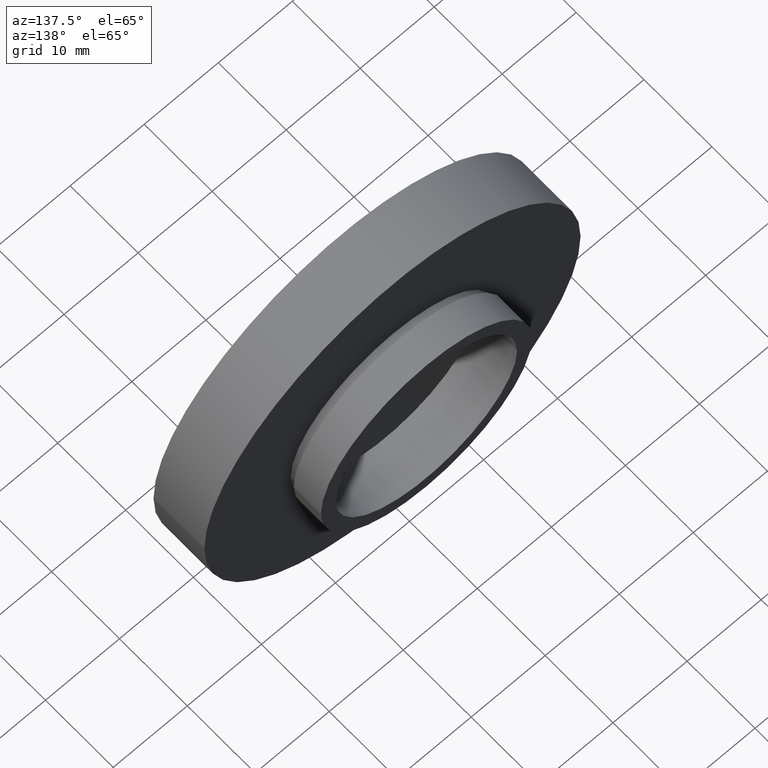
[diagram: clean part render]
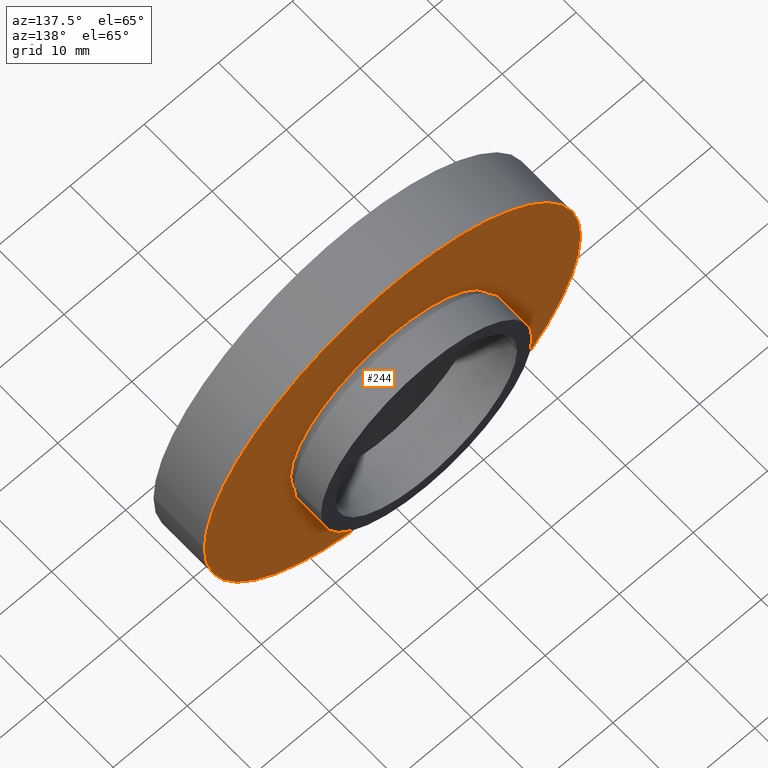
[diagram: same view with one face highlighted and labeled with its STEP entity id]
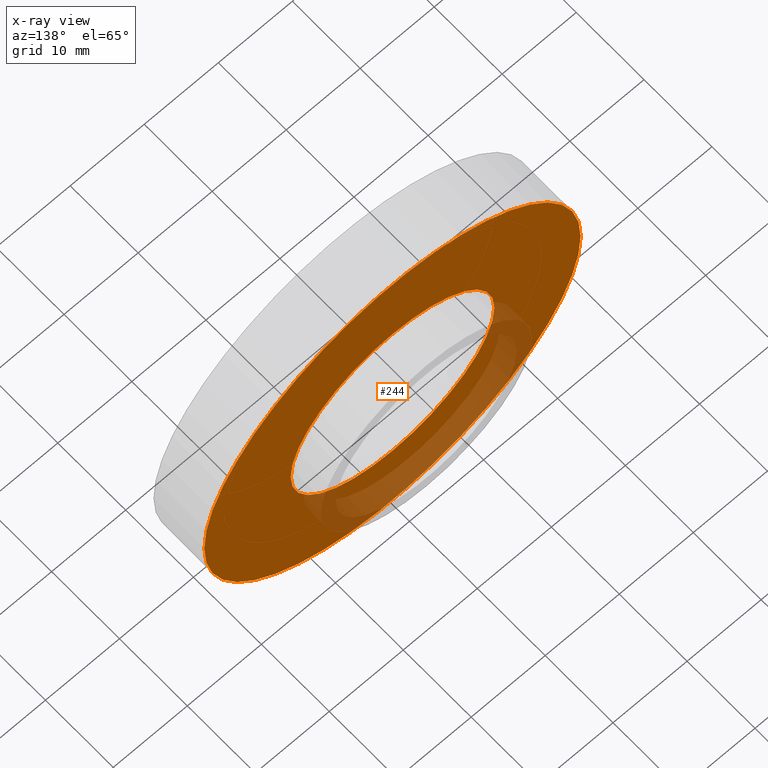
[diagram: x-ray of the same camera — body ghosted, the highlighted face saturated]
A machine part, auxiliary view. The second image highlights one B-rep face of the part: STEP entity #244.
The next image is the same camera in x-ray: the body ghosted, the highlighted face saturated — about 18% of this face is hidden behind the body in this view.
In plain terms, the highlighted planar face has unit normal (0, -1, 0).
Its self-contained STEP definition (entity closure, byte-faithful):
#4 = CARTESIAN_POINT ( 'NONE',  ( 1.149455719078122700E-015, 7.499999999999998200, 0.0000000000000000000 ) ) ;
#47 = EDGE_LOOP ( 'NONE', ( #228, #77 ) ) ;
#55 = CIRCLE ( 'NONE', #88, 13.75000000000000000 ) ;
#77 = ORIENTED_EDGE ( 'NONE', *, *, #441, .T. ) ;
#86 = CARTESIAN_POINT ( 'NONE',  ( 25.39999999999999900, 7.500000000000000000, 3.110602869834276900E-015 ) ) ;
#88 = AXIS2_PLACEMENT_3D ( 'NONE', #283, #141, #187 ) ;
#108 = CARTESIAN_POINT ( 'NONE',  ( 1.149455719078123100E-015, 7.499999999999996400, 0.0000000000000000000 ) ) ;
#114 = VERTEX_POINT ( 'NONE', #576 ) ;
#141 = DIRECTION ( 'NONE',  ( -1.224646799147351000E-016, 1.000000000000000000, -0.0000000000000000000 ) ) ;
#158 = FACE_OUTER_BOUND ( 'NONE', #47, .T. ) ;
#187 = DIRECTION ( 'NONE',  ( -1.000000000000000000, -1.261617073437678000E-016, 0.0000000000000000000 ) ) ;
#192 = DIRECTION ( 'NONE',  ( -1.224646799147351000E-016, 1.000000000000000000, -0.0000000000000000000 ) ) ;
#210 = AXIS2_PLACEMENT_3D ( 'NONE', #489, #192, #473 ) ;
#228 = ORIENTED_EDGE ( 'NONE', *, *, #313, .T. ) ;
#234 = DIRECTION ( 'NONE',  ( -1.224646799147351000E-016, 1.000000000000000000, -0.0000000000000000000 ) ) ;
#244 = ADVANCED_FACE ( 'NONE', ( #335, #158 ), #348, .F. ) ;
#259 = AXIS2_PLACEMENT_3D ( 'NONE', #108, #234, #511 ) ;
#267 = CIRCLE ( 'NONE', #259, 25.39999999999999900 ) ;
#279 = EDGE_LOOP ( 'NONE', ( #439, #468 ) ) ;
#282 = AXIS2_PLACEMENT_3D ( 'NONE', #557, #554, #558 ) ;
#283 = CARTESIAN_POINT ( 'NONE',  ( 1.149455719078122700E-015, 7.499999999999998200, 0.0000000000000000000 ) ) ;
#286 = CARTESIAN_POINT ( 'NONE',  ( -25.39999999999999900, 7.499999999999992900, 0.0000000000000000000 ) ) ;
#299 = DIRECTION ( 'NONE',  ( -1.000000000000000000, -1.261617073437678000E-016, 0.0000000000000000000 ) ) ;
#313 = EDGE_CURVE ( 'NONE', #470, #488, #267, .T. ) ;
#335 = FACE_BOUND ( 'NONE', #279, .T. ) ;
#348 = PLANE ( 'NONE',  #282 ) ;
#354 = DIRECTION ( 'NONE',  ( -1.224646799147351000E-016, 1.000000000000000000, -0.0000000000000000000 ) ) ;
#402 = CIRCLE ( 'NONE', #479, 13.75000000000000000 ) ;
#439 = ORIENTED_EDGE ( 'NONE', *, *, #606, .F. ) ;
#441 = EDGE_CURVE ( 'NONE', #488, #470, #471, .T. ) ;
#468 = ORIENTED_EDGE ( 'NONE', *, *, #543, .F. ) ;
#470 = VERTEX_POINT ( 'NONE', #286 ) ;
#471 = CIRCLE ( 'NONE', #210, 25.39999999999999900 ) ;
#473 = DIRECTION ( 'NONE',  ( -1.000000000000000000, -1.365923996832131600E-016, 0.0000000000000000000 ) ) ;
#479 = AXIS2_PLACEMENT_3D ( 'NONE', #4, #354, #299 ) ;
#488 = VERTEX_POINT ( 'NONE', #86 ) ;
#489 = CARTESIAN_POINT ( 'NONE',  ( 1.149455719078123100E-015, 7.499999999999996400, 0.0000000000000000000 ) ) ;
#506 = VERTEX_POINT ( 'NONE', #560 ) ;
#511 = DIRECTION ( 'NONE',  ( -1.000000000000000000, -1.365923996832131600E-016, 0.0000000000000000000 ) ) ;
#543 = EDGE_CURVE ( 'NONE', #506, #114, #55, .T. ) ;
#554 = DIRECTION ( 'NONE',  ( 1.224646799147351000E-016, -1.000000000000000000, 0.0000000000000000000 ) ) ;
#557 = CARTESIAN_POINT ( 'NONE',  ( 13.75000000000000200, 7.499999999999999100, 0.0000000000000000000 ) ) ;
#558 = DIRECTION ( 'NONE',  ( 1.000000000000000000, 1.224646799147351000E-016, 0.0000000000000000000 ) ) ;
#560 = CARTESIAN_POINT ( 'NONE',  ( 13.75000000000000200, 7.500000000000000000, 1.683889348827610700E-015 ) ) ;
#576 = CARTESIAN_POINT ( 'NONE',  ( -13.74999999999999800, 7.499999999999996400, 0.0000000000000000000 ) ) ;
#606 = EDGE_CURVE ( 'NONE', #114, #506, #402, .T. ) ;